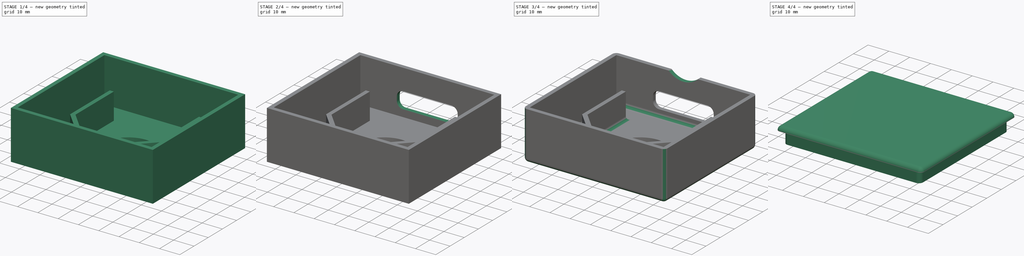
[diagram: build sequence overview — one tinted view per stage of 4, left to right]
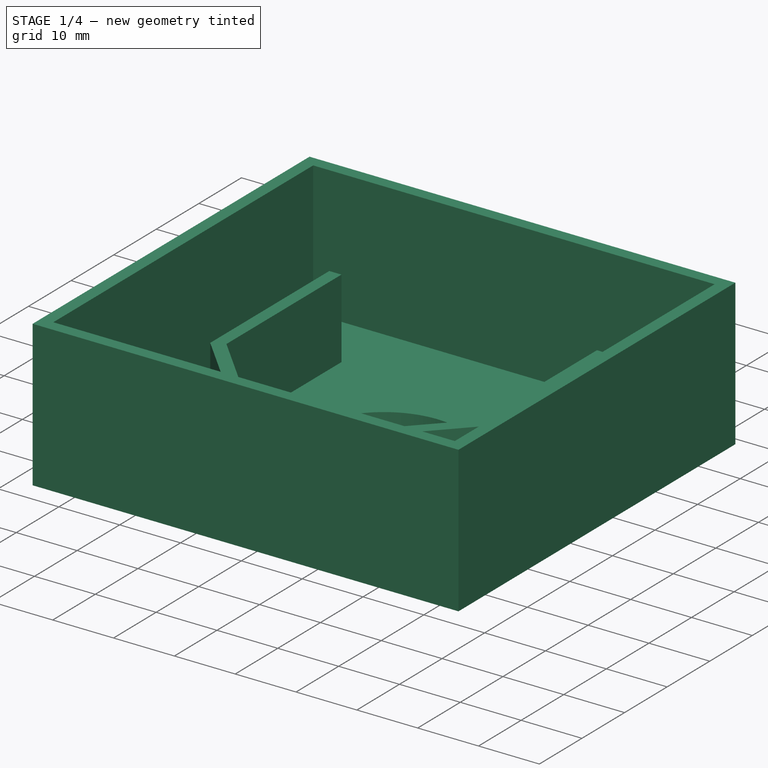
[diagram: stage 1 of 4 — iso view after this stage's code; geometry added in this stage tinted green]
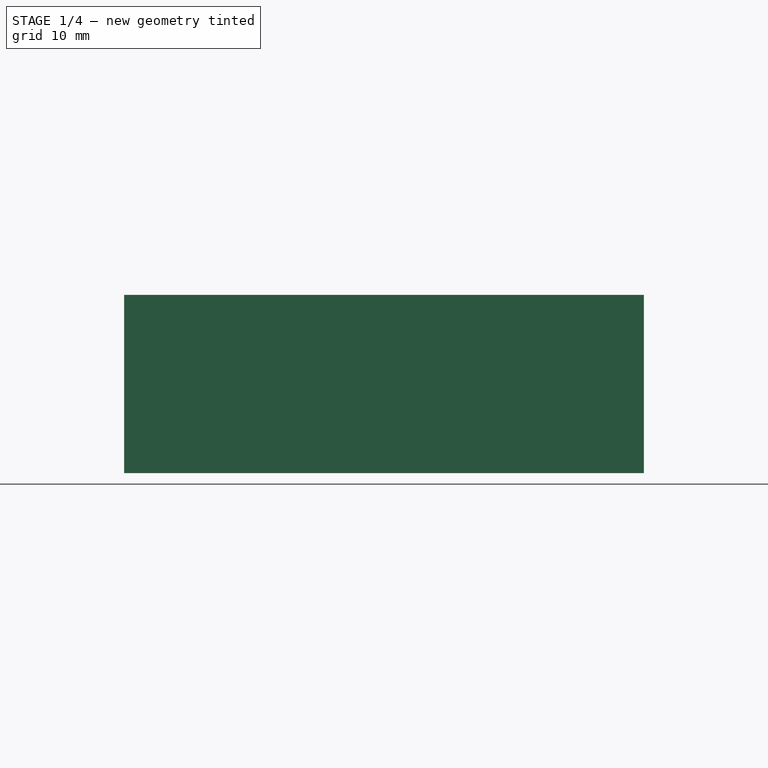
[diagram: stage 1 of 4 — front view after this stage's code; geometry added in this stage tinted green]
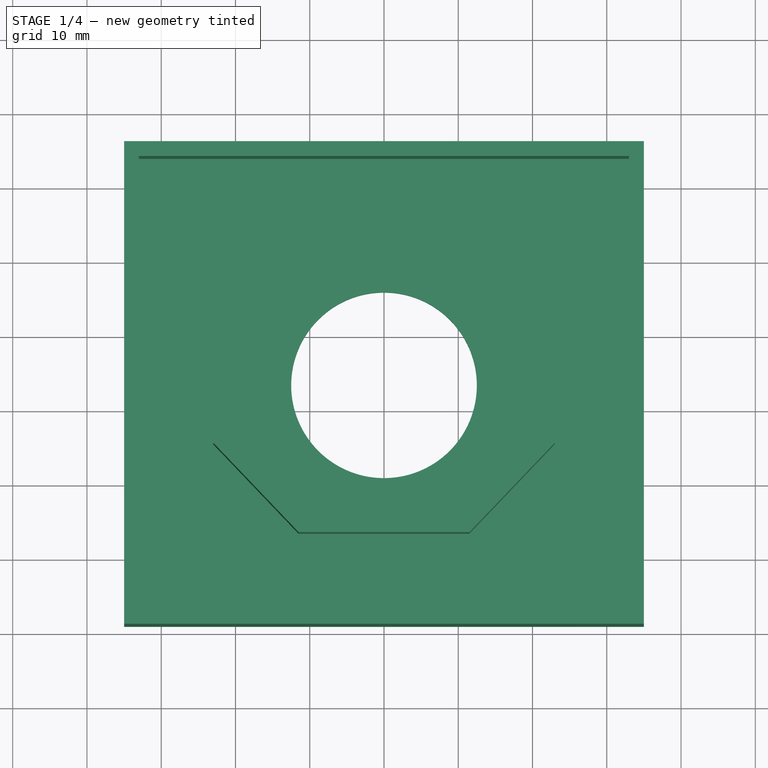
[diagram: stage 1 of 4 — top view after this stage's code; geometry added in this stage tinted green]
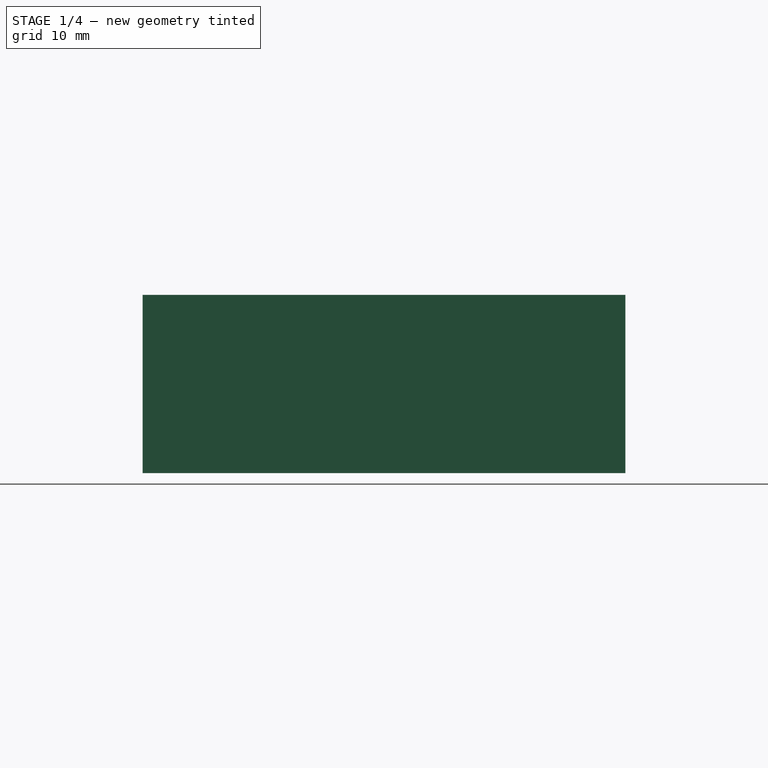
[diagram: stage 1 of 4 — right view after this stage's code; geometry added in this stage tinted green]
FCSTD DOCUMENT  (FreeCAD 1.0R39109 (Git))
Label: ShellyPlus2pmBox
License: All rights reserved
LicenseURL: https://en.wikipedia.org/wiki/All_rights_reserved
objects: Sketcher::SketchObject×8, PartDesign::Pad×5, PartDesign::Pocket×3, PartDesign::Fillet×3, PartDesign::Body×2, PartDesign::SubShapeBinder×1
note: 52 computed .brp shape members not serialized (recipe doc carries the construction recipe); baked Part::Feature solids carry a one-line shape summary decoded from their .brp

FEATURE [Sketcher::SketchObject] Sketch  label="ShellyWallSketch"
  ArcFitTolerance = 1e-06
  AttachmentSupport = -> [XY_Plane]
  FullyConstrained = true
  MakeInternals = false
  MapMode = 5
  sketch-geometry (13):
    g0: LineSegment StartX=21 StartY=-13.5 StartZ=0 EndX=21 EndY=13.5 EndZ=0
    g1: LineSegment StartX=-21 StartY=13.5 StartZ=0 EndX=-21 EndY=-13.5 EndZ=0
    g2: GeomPoint [constr] X=0 Y=0 Z=0
    g3: LineSegment StartX=-21 StartY=-13.5 StartZ=0 EndX=-10.5 EndY=-24.5 EndZ=0
    g4: LineSegment StartX=-10.5 StartY=-24.5 StartZ=0 EndX=10.5 EndY=-24.5 EndZ=0
    g5: LineSegment StartX=10.5 StartY=-24.5 StartZ=0 EndX=21 EndY=-13.5 EndZ=0
    g6: LineSegment StartX=-23 StartY=13.5 StartZ=0 EndX=-23 EndY=-14.4524 EndZ=0
    g7: LineSegment StartX=-23 StartY=-14.4524 StartZ=0 EndX=-11.5 EndY=-26.5 EndZ=0
    g8: LineSegment StartX=-11.5 StartY=-26.5 StartZ=0 EndX=11.5 EndY=-26.5 EndZ=0
    g9: LineSegment StartX=11.5 StartY=-26.5 StartZ=0 EndX=23 EndY=-14.4524 EndZ=0
    g10: LineSegment StartX=23 StartY=-14.4524 StartZ=0 EndX=23 EndY=13.5 EndZ=0
    g11: LineSegment StartX=-21 StartY=13.5 StartZ=0 EndX=-23 EndY=13.5 EndZ=0
    g12: LineSegment StartX=23 StartY=13.5 StartZ=0 EndX=21 EndY=13.5 EndZ=0
  constraints (35):
    c: Vertical(g0)
    c: Vertical(g1)
    c: Symmetric(g0,g1,g2)
    c: Coincident(g2,g-1)
    c: DistanceX(g1,g0) = 42
    c: Coincident(g3,g1)
    c: Coincident(g5,g4)
    c: Coincident(g5,g0)
    c: Symmetric(g3,g4,g-2)
    c: Coincident(g4,g3)
    c: Equal(g3,g5)
    c: DistanceY(g4,g0) = 38
    c: DistanceY(g0,g0) = 27
    c: DistanceX(g4,g4) = 21
    c: Vertical(g6)
    c: Coincident(g7,g6)
    c: Coincident(g8,g7)
    c: Horizontal(g8)
    c: Coincident(g9,g8)
    c: Coincident(g10,g9)
    c: Vertical(g10)
    c: DistanceX(g6,g1) = 2
    c: DistanceX(g0,g10) = 2
    c: DistanceY(g8,g4) = 2
    c: Parallel(g7,g3)
    c: Parallel(g9,g5)
    c: DistanceX(g7,g3) = 1
    c: DistanceX(g4,g8) = 1
    c: Coincident(g11,g1)
    c: Coincident(g11,g6)
    c: Coincident(g12,g10)
    c: Coincident(g12,g0)
    c: Horizontal(g11)
    c: Horizontal(g12)
    c: Horizontal(g1,g0)
FEATURE [PartDesign::Pad] Pad  label="ShellyWallPad"
  Direction = (0,0,1)
  Length = 15
  Length2 = 10
  Profile = -> Sketch
  ReferenceAxis = -> Sketch [N_Axis]
  Refine = true
  Suppressed = false
  Type = 0
FEATURE [Sketcher::SketchObject] Sketch001  label="BoxFloorSketch"
  ArcFitTolerance = 1e-06
  AttachmentSupport = -> [XY_Plane]
  ExternalGeometry = -> [Pad]
  FullyConstrained = true
  MakeInternals = false
  MapMode = 5
  sketch-geometry (10):
    g0: LineSegment StartX=35 StartY=-39 StartZ=0 EndX=35 EndY=26 EndZ=0
    g1: LineSegment StartX=35 StartY=26 StartZ=0 EndX=-35 EndY=26 EndZ=0
    g2: LineSegment StartX=-35 StartY=26 StartZ=0 EndX=-35 EndY=-39 EndZ=0
    g3: LineSegment StartX=-35 StartY=-39 StartZ=0 EndX=35 EndY=-39 EndZ=0
    g4: GeomPoint [constr] X=0 Y=0 Z=0
    g5: Circle CenterX=0 CenterY=-6.5 CenterZ=0 NormalX=0 NormalY=0 NormalZ=1 AngleXU=0 Radius=12.5
    g6: LineSegment [constr] StartX=11.5 StartY=-26.5 StartZ=0 EndX=23 EndY=-26.5 EndZ=0
    g7: LineSegment [constr] StartX=23 StartY=-26.5 StartZ=0 EndX=23 EndY=-14.4524 EndZ=0
    g8: LineSegment [constr] StartX=-23 StartY=13.5 StartZ=0 EndX=23 EndY=-26.5 EndZ=0
    g9: GeomPoint [constr] X=0 Y=-6.5 Z=0
  constraints (23):
    c: Coincident(g0,g1)
    c: Coincident(g1,g2)
    c: Coincident(g2,g3)
    c: Coincident(g3,g0)
    c: Vertical(g0)
    c: Vertical(g2)
    c: Horizontal(g1)
    c: Horizontal(g3)
    c: Coincident(g4,g-1)
    c: PointOnObject(g5,g-2)
    c: Diameter(g5) = 25
    c: Coincident(g6,g-4)
    c: Horizontal(g6)
    c: Coincident(g7,g-4)
    c: Vertical(g7)
    c: Coincident(g8,g-3)
    c: Coincident(g8,g7)
    c: PointOnObject(g9,g8)
    c: Coincident(g5,g9)
    c: Symmetric(g0,g1,g5)
    c: Coincident(g6,g7)
    c: DistanceX(g1,g1) = 70
    c: DistanceY(g0,g0) = 65
FEATURE [PartDesign::Pad] Pad001  label="BoxFloorPad"
  BaseFeature = -> Pad
  Direction = (0,0,1)
  Length = 2
  Length2 = 10
  Profile = -> Sketch001
  ReferenceAxis = -> Sketch001 [N_Axis]
  Refine = true
  Suppressed = false
  Type = 0
FEATURE [Sketcher::SketchObject] Sketch002  label="BoxWallSketch"
  ArcFitTolerance = 1e-06
  AttachmentSupport = -> [Pad001]
  ExternalGeometry = -> [Pad001]
  FullyConstrained = true
  MakeInternals = false
  MapMode = 5
  Placement = pos=(0,0,2) rot=(0,0,1;0rad)
  sketch-geometry (8):
    g0: LineSegment StartX=-35 StartY=26 StartZ=0 EndX=-35 EndY=-39 EndZ=0
    g1: LineSegment StartX=-35 StartY=-39 StartZ=0 EndX=35 EndY=-39 EndZ=0
    g2: LineSegment StartX=35 StartY=-39 StartZ=0 EndX=35 EndY=26 EndZ=0
    g3: LineSegment StartX=35 StartY=26 StartZ=0 EndX=-35 EndY=26 EndZ=0
    g4: LineSegment StartX=-33 StartY=24 StartZ=0 EndX=-33 EndY=-37 EndZ=0
    g5: LineSegment StartX=-33 StartY=-37 StartZ=0 EndX=33 EndY=-37 EndZ=0
    g6: LineSegment StartX=33 StartY=-37 StartZ=0 EndX=33 EndY=24 EndZ=0
    g7: LineSegment StartX=33 StartY=24 StartZ=0 EndX=-33 EndY=24 EndZ=0
  constraints (22):
    c: Coincident(g0,g1)
    c: Coincident(g1,g2)
    c: Coincident(g2,g3)
    c: Coincident(g3,g0)
    c: Vertical(g0)
    c: Vertical(g2)
    c: Horizontal(g1)
    c: Horizontal(g3)
    c: Coincident(g0,g-3)
    c: Coincident(g1,g-4)
    c: Coincident(g4,g5)
    c: Coincident(g5,g6)
    c: Coincident(g6,g7)
    c: Coincident(g7,g4)
    c: Vertical(g4)
    c: Vertical(g6)
    c: Horizontal(g5)
    c: Horizontal(g7)
    c: DistanceX(g0,g4) = 2
    c: DistanceY(g4,g0) = 2
    c: DistanceX(g5,g1) = 2
    c: DistanceY(g1,g5) = 2
FEATURE [PartDesign::Pad] Pad002  label="BoxWallPad"
  BaseFeature = -> Pad001
  Direction = (0,0,1)
  Length = 22
  Length2 = 10
  Profile = -> Sketch002
  ReferenceAxis = -> Sketch002 [N_Axis]
  Refine = true
  Suppressed = false
  Type = 0
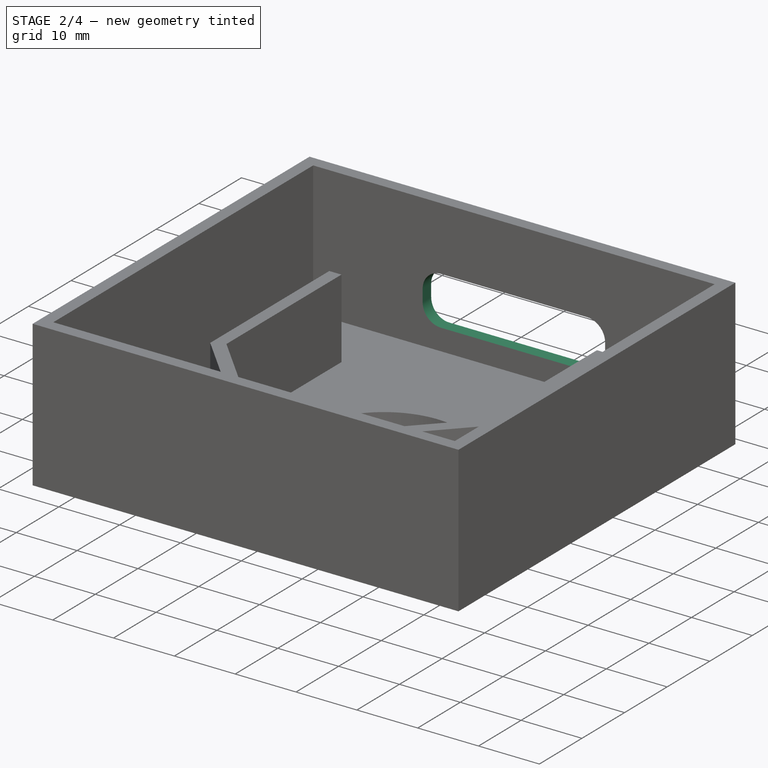
[diagram: stage 2 of 4 — iso view after this stage's code; geometry added in this stage tinted green]
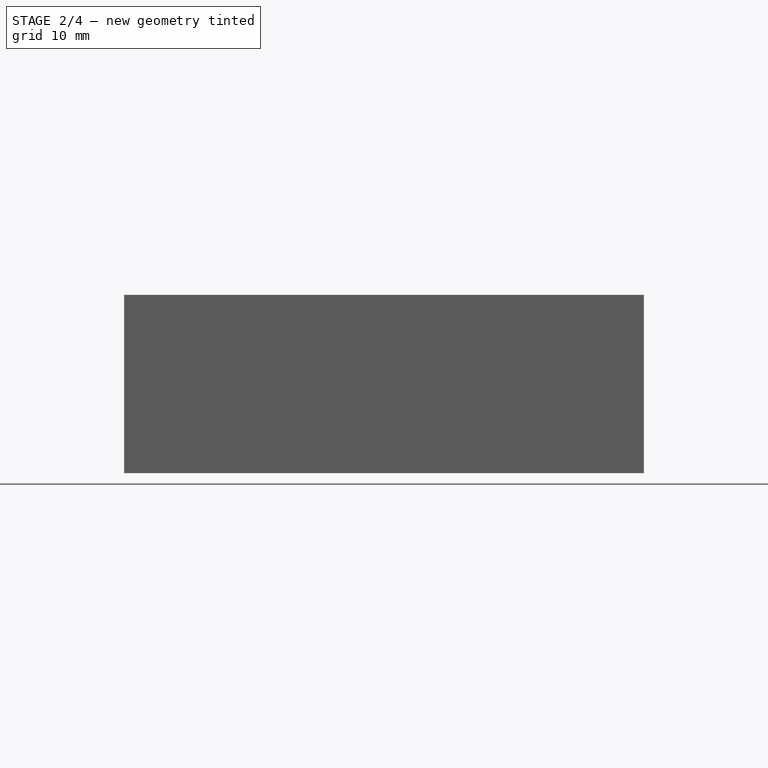
[diagram: stage 2 of 4 — front view after this stage's code; geometry added in this stage tinted green]
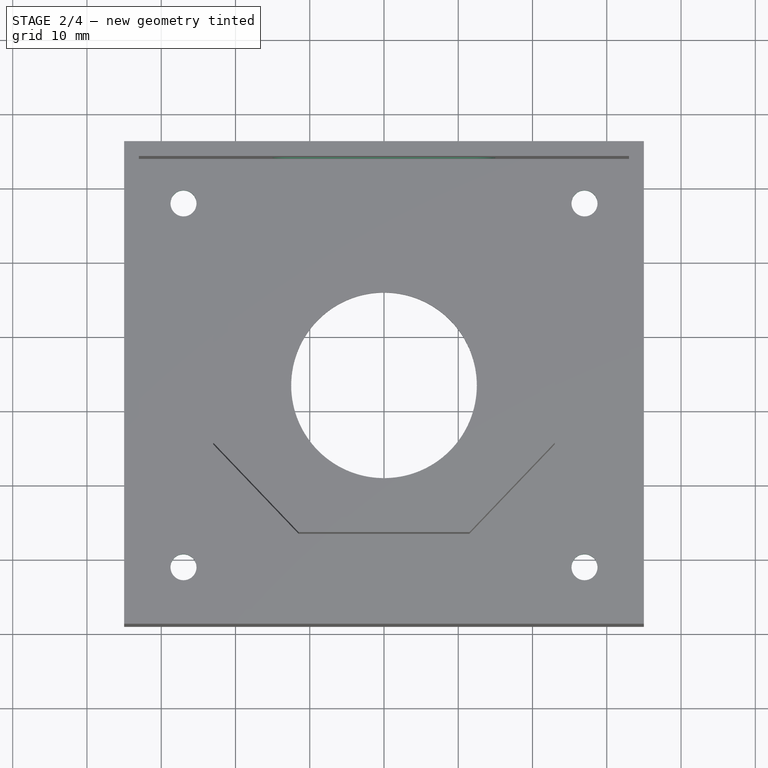
[diagram: stage 2 of 4 — top view after this stage's code; geometry added in this stage tinted green]
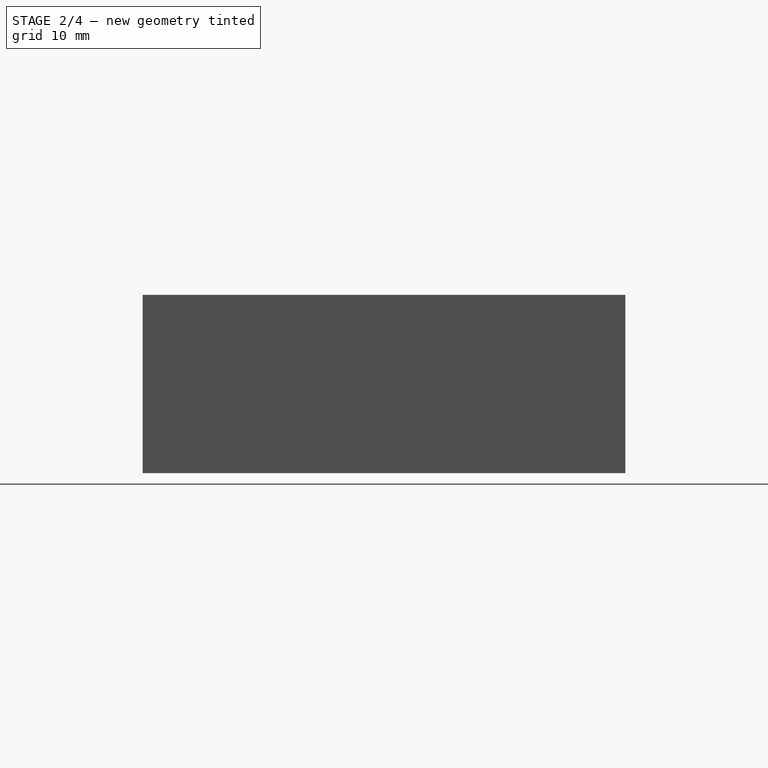
[diagram: stage 2 of 4 — right view after this stage's code; geometry added in this stage tinted green]
FEATURE [Sketcher::SketchObject] Sketch003  label="BoxInputSketch"
  ArcFitTolerance = 1e-06
  AttachmentSupport = -> [Pad002]
  FullyConstrained = true
  MakeInternals = false
  MapMode = 5
  Placement = pos=(0,26,0) rot=(0,0.707107,0.707107;3.14159rad)
  sketch-geometry (5):
    g0: LineSegment StartX=-15 StartY=13.5 StartZ=0 EndX=-15 EndY=5.5 EndZ=0
    g1: LineSegment StartX=-15 StartY=5.5 StartZ=0 EndX=15 EndY=5.5 EndZ=0
    g2: LineSegment StartX=15 StartY=5.5 StartZ=0 EndX=15 EndY=13.5 EndZ=0
    g3: LineSegment StartX=15 StartY=13.5 StartZ=0 EndX=-15 EndY=13.5 EndZ=0
    g4: GeomPoint [constr] X=0 Y=9.5 Z=0
  constraints (13):
    c: Coincident(g0,g1)
    c: Coincident(g1,g2)
    c: Coincident(g2,g3)
    c: Coincident(g3,g0)
    c: Vertical(g0)
    c: Vertical(g2)
    c: Horizontal(g1)
    c: Horizontal(g3)
    c: Symmetric(g2,g0,g4)
    c: PointOnObject(g4,g-2)
    c: DistanceX(g3,g3) = 30
    c: DistanceY(g2,g2) = 8
    c: DistanceY(g-1,g4) = 9.5
FEATURE [PartDesign::Pocket] Pocket  label="BoxInputPocket"
  BaseFeature = -> Pad002
  Direction = (0,-1,2e-16)
  Length = 2
  Length2 = 5
  Profile = -> Sketch003
  ReferenceAxis = -> Sketch003 [N_Axis]
  Refine = true
  Suppressed = false
  Type = 0
FEATURE [Sketcher::SketchObject] Sketch004  label="BoxSkrewHoleSketch"
  ArcFitTolerance = 1e-06
  AttachmentSupport = -> [Pocket]
  ExternalGeometry = -> [Pocket]
  FullyConstrained = true
  MakeInternals = false
  MapMode = 5
  Placement = pos=(0,0,2) rot=(0,0,1;0rad)
  sketch-geometry (8):
    g0: LineSegment [constr] StartX=-27 StartY=18 StartZ=0 EndX=-27 EndY=-31 EndZ=0
    g1: LineSegment [constr] StartX=-27 StartY=-31 StartZ=0 EndX=27 EndY=-31 EndZ=0
    g2: LineSegment [constr] StartX=27 StartY=-31 StartZ=0 EndX=27 EndY=18 EndZ=0
    g3: LineSegment [constr] StartX=27 StartY=18 StartZ=0 EndX=-27 EndY=18 EndZ=0
    g4: Circle CenterX=-27 CenterY=18 CenterZ=0 NormalX=0 NormalY=0 NormalZ=1 AngleXU=0 Radius=1.75
    g5: Circle CenterX=27 CenterY=18 CenterZ=0 NormalX=0 NormalY=0 NormalZ=1 AngleXU=0 Radius=1.75
    g6: Circle CenterX=-27 CenterY=-31 CenterZ=0 NormalX=0 NormalY=0 NormalZ=1 AngleXU=0 Radius=1.75
    g7: Circle CenterX=27 CenterY=-31 CenterZ=0 NormalX=0 NormalY=0 NormalZ=1 AngleXU=0 Radius=1.75
  constraints (20):
    c: Coincident(g0,g1)
    c: Coincident(g1,g2)
    c: Coincident(g2,g3)
    c: Coincident(g3,g0)
    c: Vertical(g0)
    c: Vertical(g2)
    c: Horizontal(g1)
    c: Horizontal(g3)
    c: DistanceX(g-3,g0) = 8
    c: DistanceY(g0,g-3) = 8
    c: DistanceY(g-4,g1) = 8
    c: DistanceX(g1,g-4) = 8
    c: Coincident(g4,g0)
    c: Coincident(g5,g2)
    c: Coincident(g6,g0)
    c: Coincident(g7,g1)
    c: Equal(g4,g5)
    c: Equal(g4,g7)
    c: Equal(g4,g6)
    c: Diameter(g4) = 3.5
FEATURE [PartDesign::Pocket] Pocket001  label="BoxSkrewHolePocket"
  BaseFeature = -> Pocket
  Direction = (0,0,-1)
  Length = 5
  Length2 = 5
  Profile = -> Sketch004
  ReferenceAxis = -> Sketch004 [N_Axis]
  Refine = true
  Suppressed = false
  Type = 1
FEATURE [PartDesign::Fillet] Fillet  label="BoxInputFillet"
  Base = -> Pocket001 [Edge41,Edge39,Edge37,Edge36]
  BaseFeature = -> Pocket001
  Radius = 3
  Refine = true
  SupportTransform = false
  Suppressed = false
  UseAllEdges = false
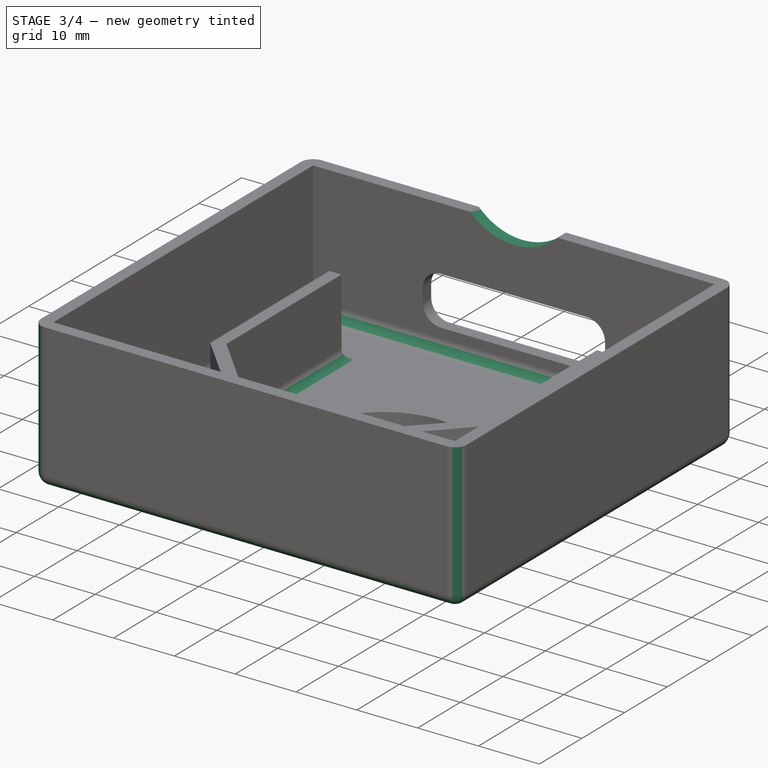
[diagram: stage 3 of 4 — iso view after this stage's code; geometry added in this stage tinted green]
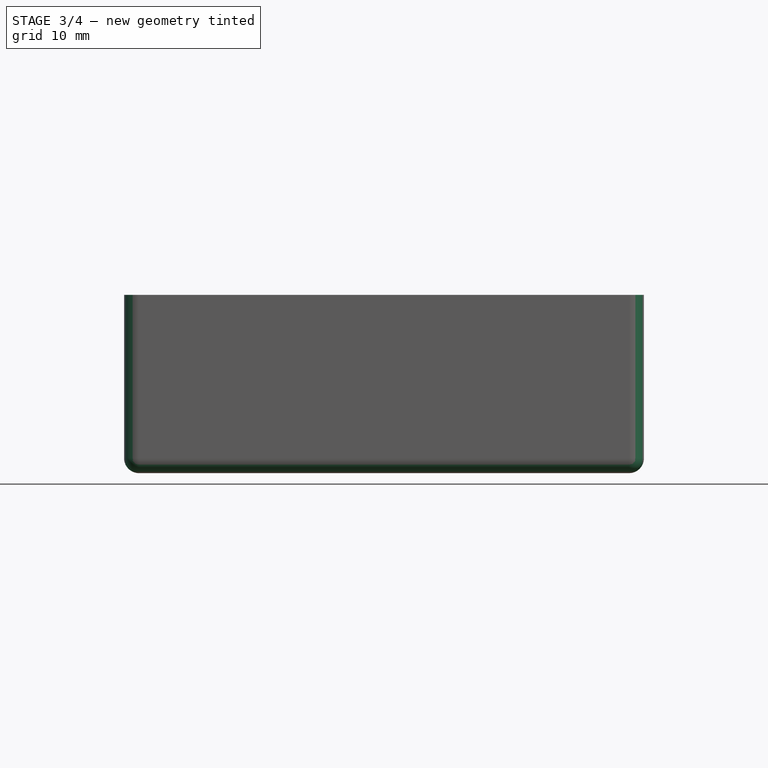
[diagram: stage 3 of 4 — front view after this stage's code; geometry added in this stage tinted green]
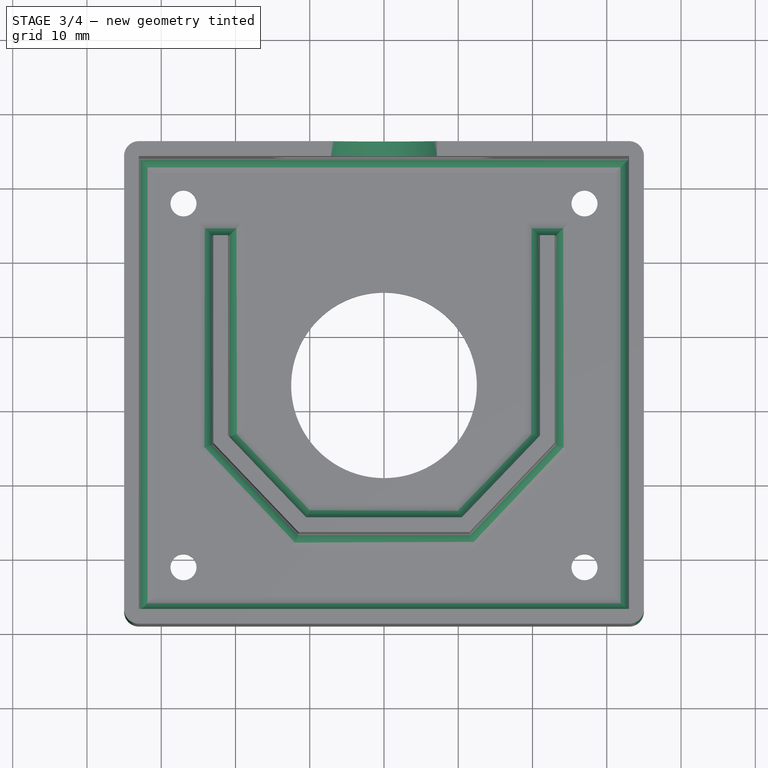
[diagram: stage 3 of 4 — top view after this stage's code; geometry added in this stage tinted green]
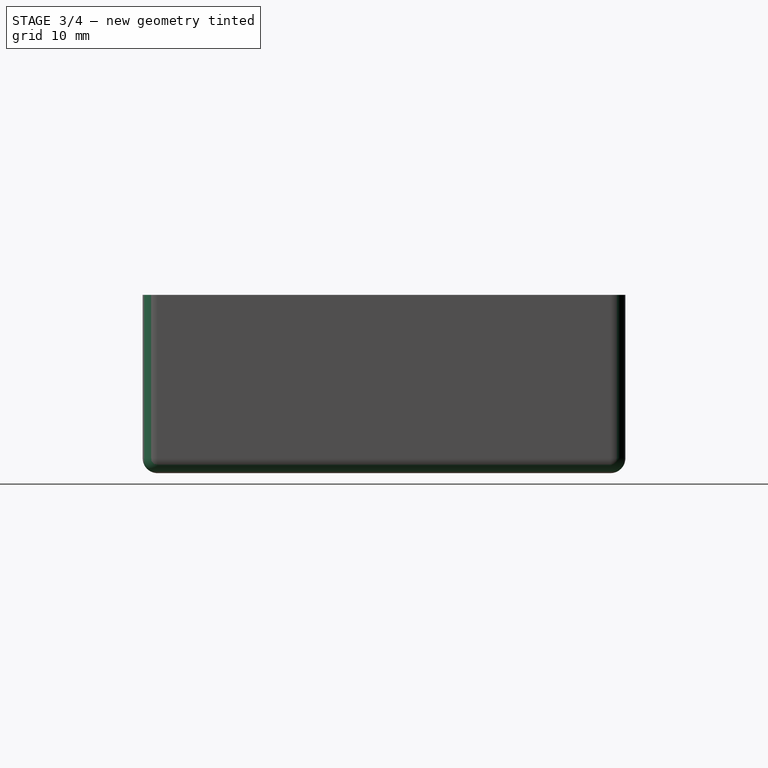
[diagram: stage 3 of 4 — right view after this stage's code; geometry added in this stage tinted green]
FEATURE [PartDesign::Fillet] Fillet001  label="BoxFillet"
  Base = -> Fillet [Edge12,Edge9,Edge31,Edge45,Edge33,Edge32,Edge29,Edge10,Edge47,Edge60,Edge63,Edge62,Edge70,Edge68,Edge66,Edge72,Edge74,Edge64,Edge75,Edge65,Edge67,Edge69,Edge71,Edge73]
  BaseFeature = -> Fillet
  Radius = 2
  Refine = true
  SupportTransform = false
  Suppressed = false
  UseAllEdges = false
FEATURE [PartDesign::Body] Body001  label="ShellyPlus2pmLid"
  AllowCompound = false
  Group = -> [Binder,Sketch005,Pad003,Sketch006,Pad004,Fillet002]
  Origin = -> Origin001
  Tip = -> Fillet002
FEATURE [Sketcher::SketchObject] Sketch007  label="BoxFingerSketch"
  ArcFitTolerance = 1e-06
  AttachmentSupport = -> [Fillet001]
  ExternalGeometry = -> [Fillet001]
  FullyConstrained = true
  MakeInternals = false
  MapMode = 5
  Placement = pos=(0,26,0) rot=(0,0.707107,0.707107;3.14159rad)
  sketch-geometry (2):
    g0: Circle CenterX=0 CenterY=31 CenterZ=0 NormalX=0 NormalY=0 NormalZ=1 AngleXU=0 Radius=10
    g1: GeomPoint X=0 Y=21 Z=0
  constraints (5):
    c: PointOnObject(g0,g-2)
    c: Diameter(g0) = 20
    c: PointOnObject(g1,g0)
    c: PointOnObject(g1,g-2)
    c: DistanceY(g1,g-3) = 3
FEATURE [PartDesign::Pocket] Pocket002  label="BoxFingerPocket"
  BaseFeature = -> Fillet001
  Direction = (0,-1,2e-16)
  Length = 5
  Length2 = 5
  Profile = -> Sketch007
  ReferenceAxis = -> Sketch007 [N_Axis]
  Refine = true
  Suppressed = false
  Type = 0
FEATURE [PartDesign::Body] Body  label="ShellyPlus2pmBox"
  AllowCompound = false
  Group = -> [Sketch,Pad,Sketch001,Pad001,Sketch002,Pad002,Sketch003,Pocket,Sketch004,Pocket001,Fillet,Fillet001,Sketch007,Pocket002]
  Origin = -> Origin
  Tip = -> Pocket002
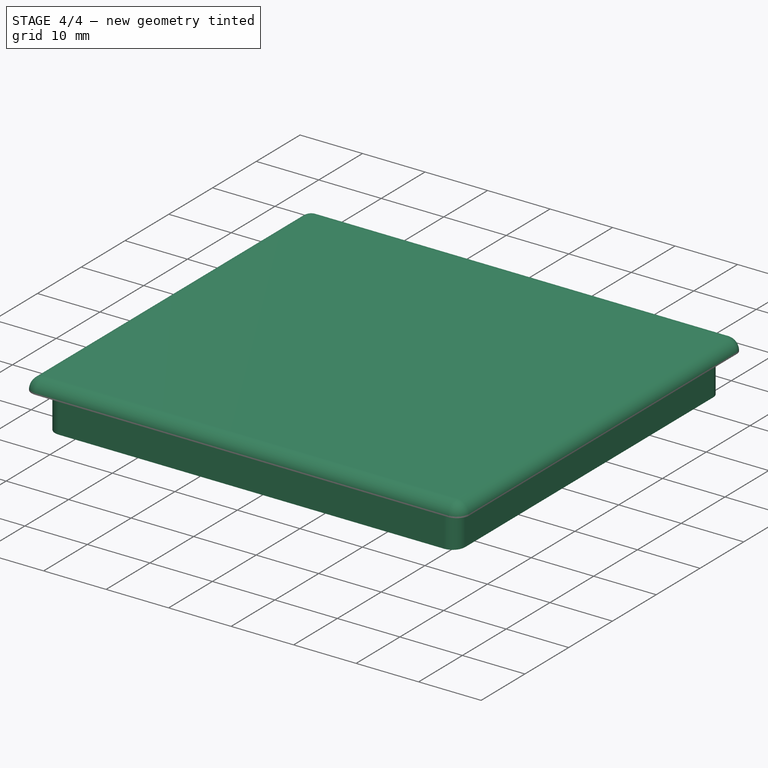
[diagram: stage 4 of 4 — iso view after this stage's code; geometry added in this stage tinted green]
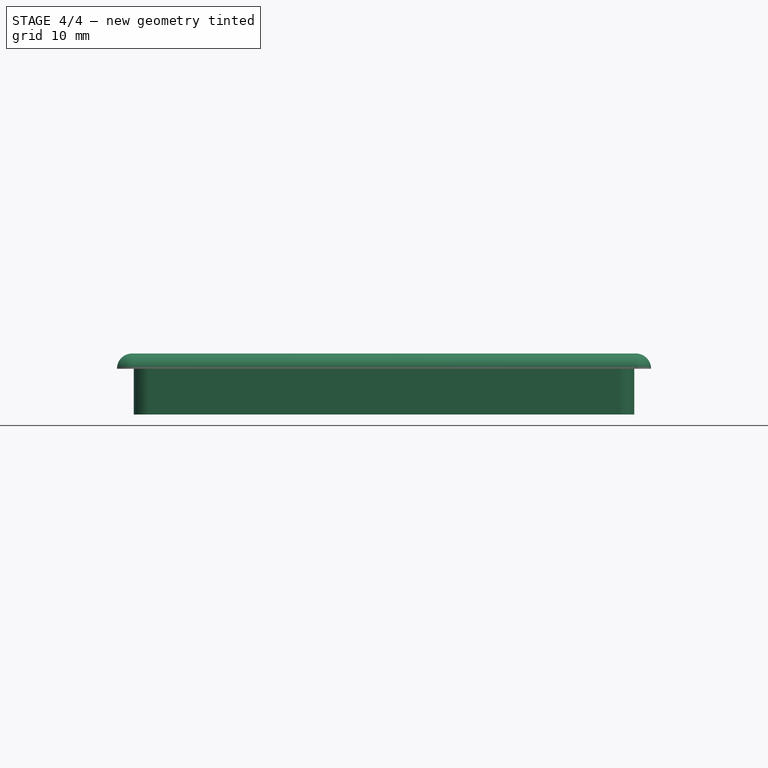
[diagram: stage 4 of 4 — front view after this stage's code; geometry added in this stage tinted green]
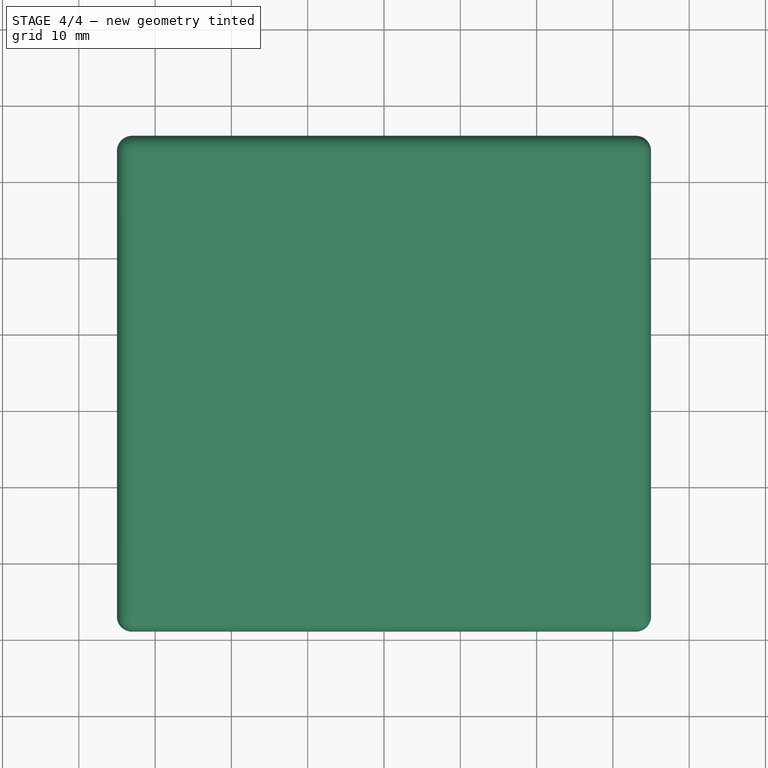
[diagram: stage 4 of 4 — top view after this stage's code; geometry added in this stage tinted green]
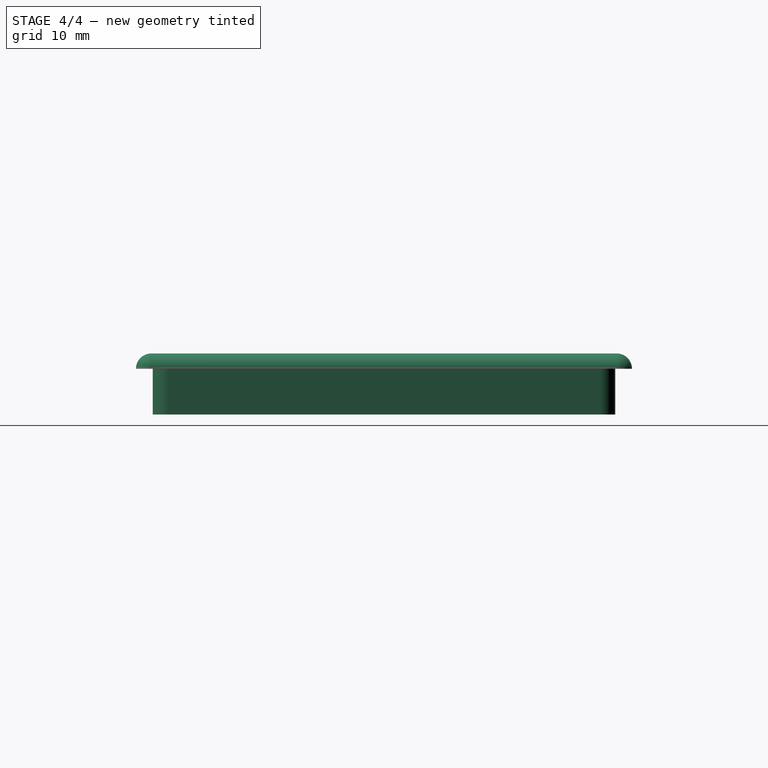
[diagram: stage 4 of 4 — right view after this stage's code; geometry added in this stage tinted green]
FEATURE [PartDesign::SubShapeBinder] Binder
  BindCopyOnChange = 0
  BindMode = 0
  ClaimChildren = false
  Context = -> Body001 [Binder.]
  Fuse = false
  MakeFace = true
  OffsetFill = false
  OffsetIntersection = false
  OffsetJoinType = 0
  OffsetOpenResult = false
  PartialLoad = false
  Refine = true
  Relative = true
  Support = -> [Body[Pocket001.Face11]]
  _Version = 2
FEATURE [Sketcher::SketchObject] Sketch005  label="BoxLidSketch"
  ArcFitTolerance = 1e-06
  AttachmentSupport = -> [Binder]
  ExternalGeometry = -> [Binder]
  FullyConstrained = true
  MakeInternals = false
  MapMode = 5
  Placement = pos=(0,0,24) rot=(0,0,1;0rad)
  sketch-geometry (4):
    g0: LineSegment StartX=-35 StartY=26 StartZ=0 EndX=-35 EndY=-39 EndZ=0
    g1: LineSegment StartX=-35 StartY=-39 StartZ=0 EndX=35 EndY=-39 EndZ=0
    g2: LineSegment StartX=35 StartY=-39 StartZ=0 EndX=35 EndY=26 EndZ=0
    g3: LineSegment StartX=35 StartY=26 StartZ=0 EndX=-35 EndY=26 EndZ=0
  constraints (10):
    c: Coincident(g0,g1)
    c: Coincident(g1,g2)
    c: Coincident(g2,g3)
    c: Coincident(g3,g0)
    c: Vertical(g0)
    c: Vertical(g2)
    c: Horizontal(g1)
    c: Horizontal(g3)
    c: Coincident(g0,g-3)
    c: Coincident(g1,g-4)
FEATURE [PartDesign::Pad] Pad003  label="BoxLidPad"
  Direction = (0,0,1)
  Length = 2
  Length2 = 10
  Profile = -> Sketch005
  ReferenceAxis = -> Sketch005 [N_Axis]
  Refine = true
  Suppressed = false
  Type = 0
FEATURE [Sketcher::SketchObject] Sketch006  label="BoxLidLipSketch"
  ArcFitTolerance = 1e-06
  AttachmentSupport = -> [Pad003]
  ExternalGeometry = -> [Binder]
  FullyConstrained = true
  MakeInternals = false
  MapMode = 5
  Placement = pos=(0,0,24) rot=(1,0,0;3.14159rad)
  sketch-geometry (8):
    g0: LineSegment StartX=-32.8 StartY=36.8 StartZ=0 EndX=-32.8 EndY=-23.8 EndZ=0
    g1: LineSegment StartX=-32.8 StartY=-23.8 StartZ=0 EndX=32.8 EndY=-23.8 EndZ=0
    g2: LineSegment StartX=32.8 StartY=-23.8 StartZ=0 EndX=32.8 EndY=36.8 EndZ=0
    g3: LineSegment StartX=32.8 StartY=36.8 StartZ=0 EndX=-32.8 EndY=36.8 EndZ=0
    g4: LineSegment StartX=-30.8 StartY=34.8 StartZ=0 EndX=-30.8 EndY=-21.8 EndZ=0
    g5: LineSegment StartX=-30.8 StartY=-21.8 StartZ=0 EndX=30.8 EndY=-21.8 EndZ=0
    g6: LineSegment StartX=30.8 StartY=-21.8 StartZ=0 EndX=30.8 EndY=34.8 EndZ=0
    g7: LineSegment StartX=30.8 StartY=34.8 StartZ=0 EndX=-30.8 EndY=34.8 EndZ=0
  constraints (24):
    c: Coincident(g0,g1)
    c: Coincident(g1,g2)
    c: Coincident(g2,g3)
    c: Coincident(g3,g0)
    c: Vertical(g0)
    c: Vertical(g2)
    c: Horizontal(g1)
    c: Horizontal(g3)
    c: Coincident(g4,g5)
    c: Coincident(g5,g6)
    c: Coincident(g6,g7)
    c: Coincident(g7,g4)
    c: Vertical(g4)
    c: Vertical(g6)
    c: Horizontal(g5)
    c: Horizontal(g7)
    c: DistanceY(g0,g-3) = 0.2
    c: DistanceX(g-3,g0) = 0.2
    c: DistanceX(g2,g-4) = 0.2
    c: DistanceY(g-4,g1) = 0.2
    c: DistanceY(g4,g0) = 2
    c: DistanceX(g0,g4) = 2
    c: DistanceX(g6,g2) = 2
    c: DistanceY(g1,g5) = 2
FEATURE [PartDesign::Pad] Pad004  label="BoxLidLipPad"
  BaseFeature = -> Pad003
  Direction = (0,0,-1)
  Length = 6
  Length2 = 10
  Profile = -> Sketch006
  ReferenceAxis = -> Sketch006 [N_Axis]
  Refine = true
  Suppressed = false
  Type = 0
FEATURE [PartDesign::Fillet] Fillet002  label="BoxLidFillet"
  Base = -> Pad004 [Edge22,Edge1,Edge5,Edge20,Edge17,Edge8,Edge18,Edge2,Edge30,Edge32,Edge34,Edge29,Edge33,Edge31,Edge35,Edge36,Edge4,Edge16,Edge7,Edge10]
  BaseFeature = -> Pad004
  Radius = 1.99
  Refine = true
  SupportTransform = false
  Suppressed = false
  UseAllEdges = false
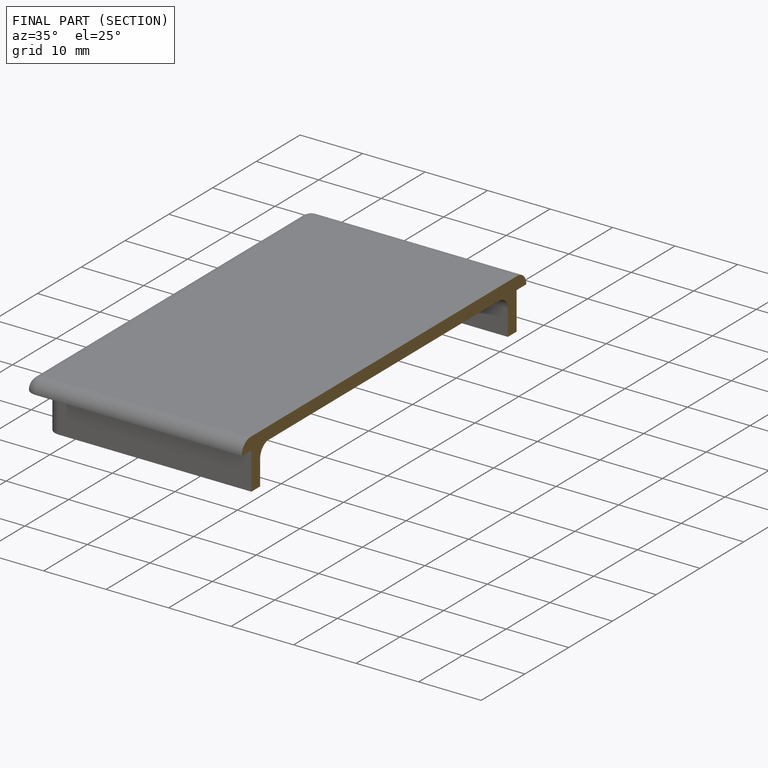
[diagram: finished part — half-section view (interior)]
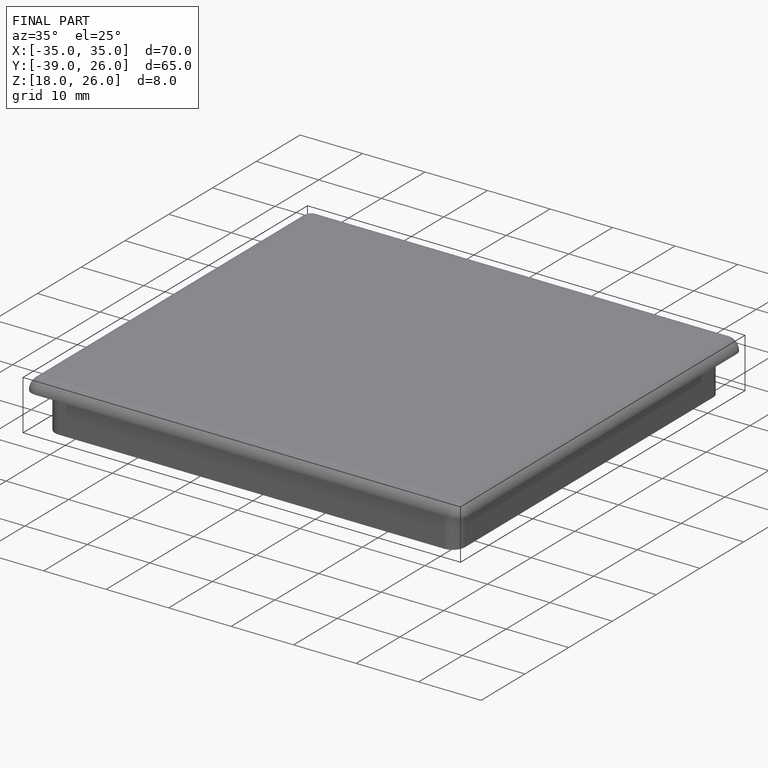
[diagram: finished part — iso view with bounding-box wireframe]
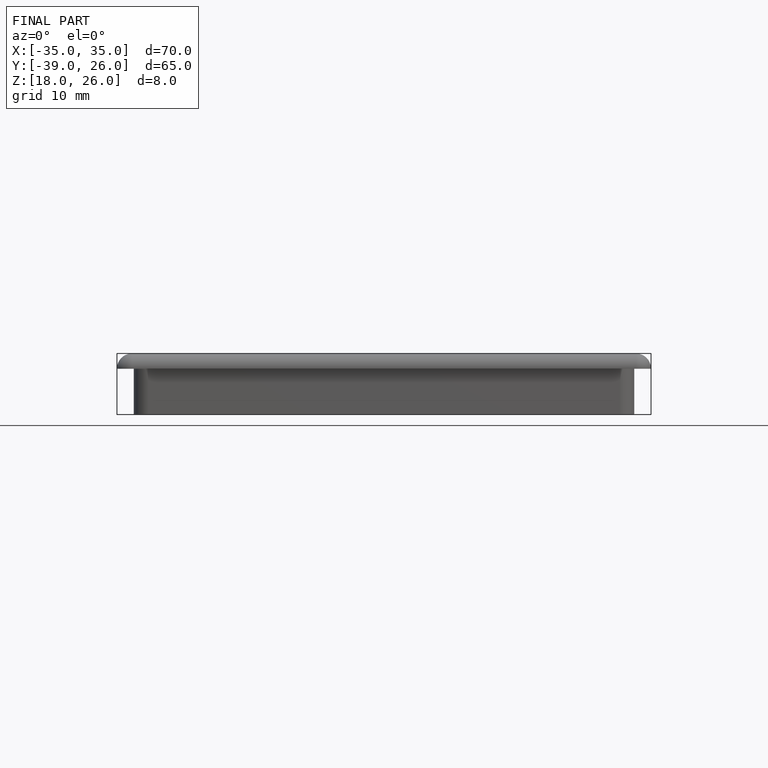
[diagram: finished part — front view with bounding-box wireframe]
